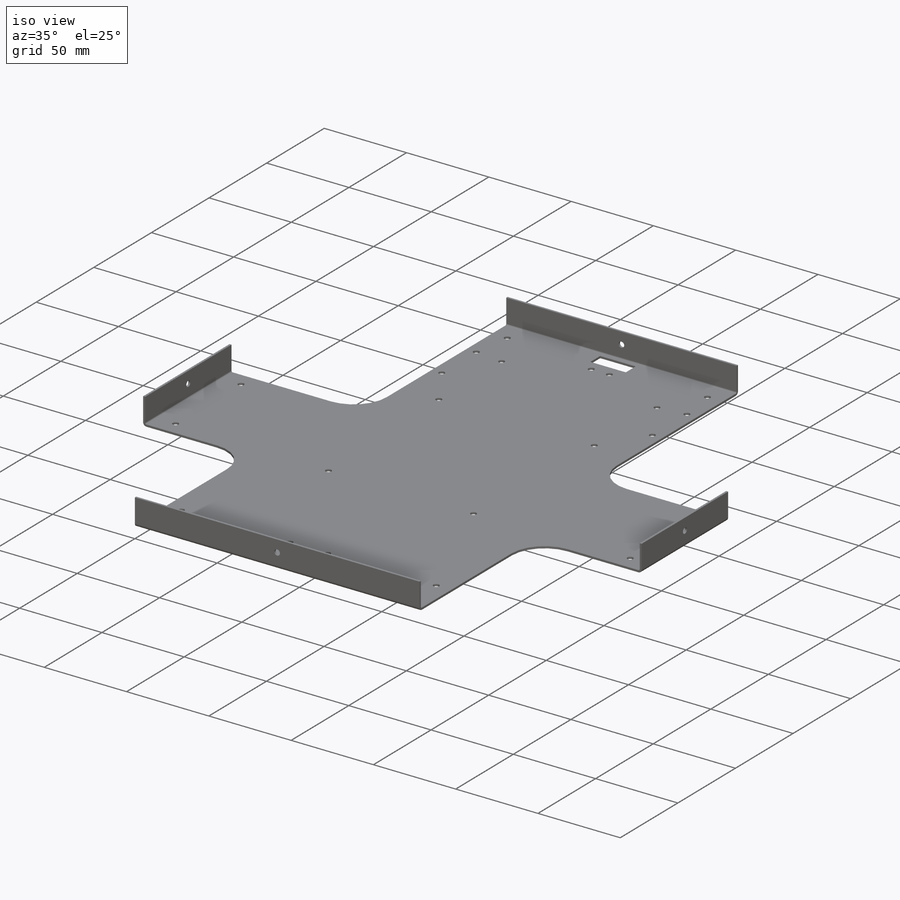
[diagram: iso view]
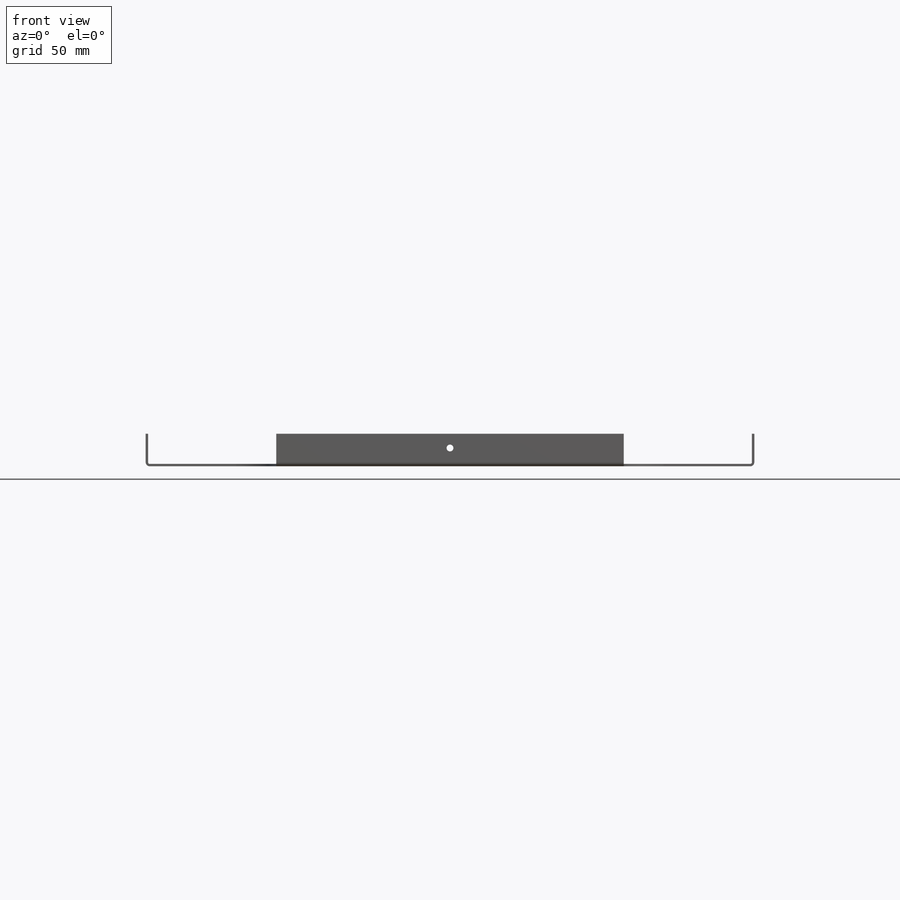
[diagram: front view]
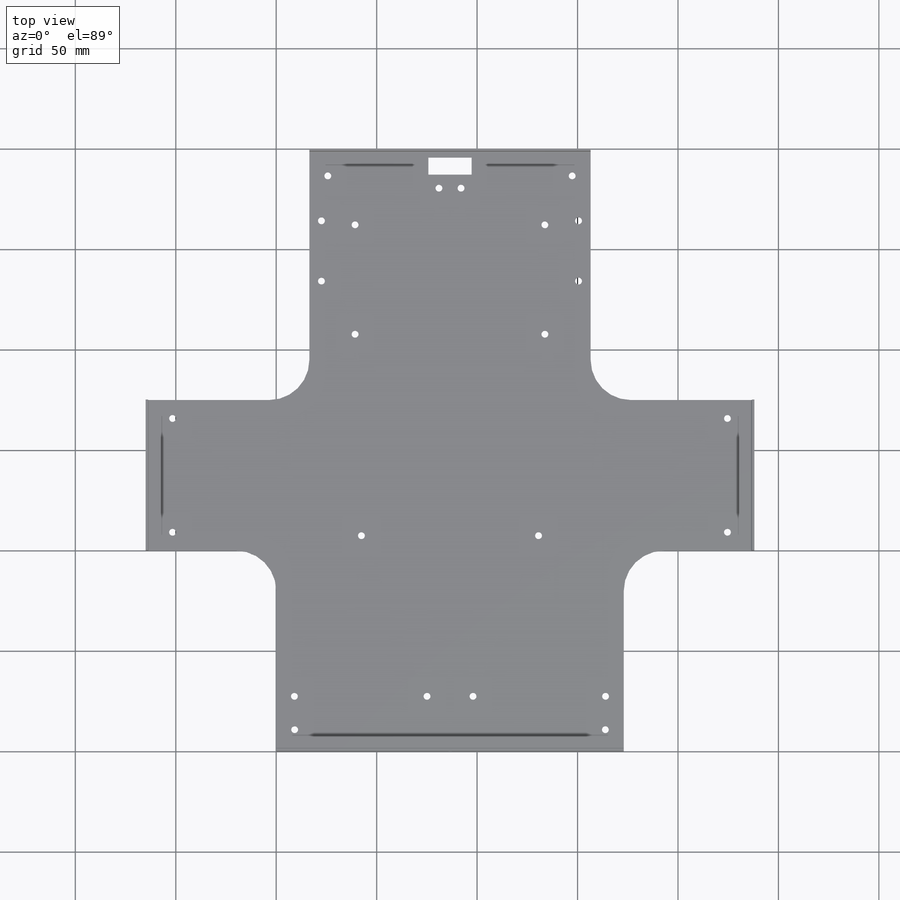
[diagram: top view]
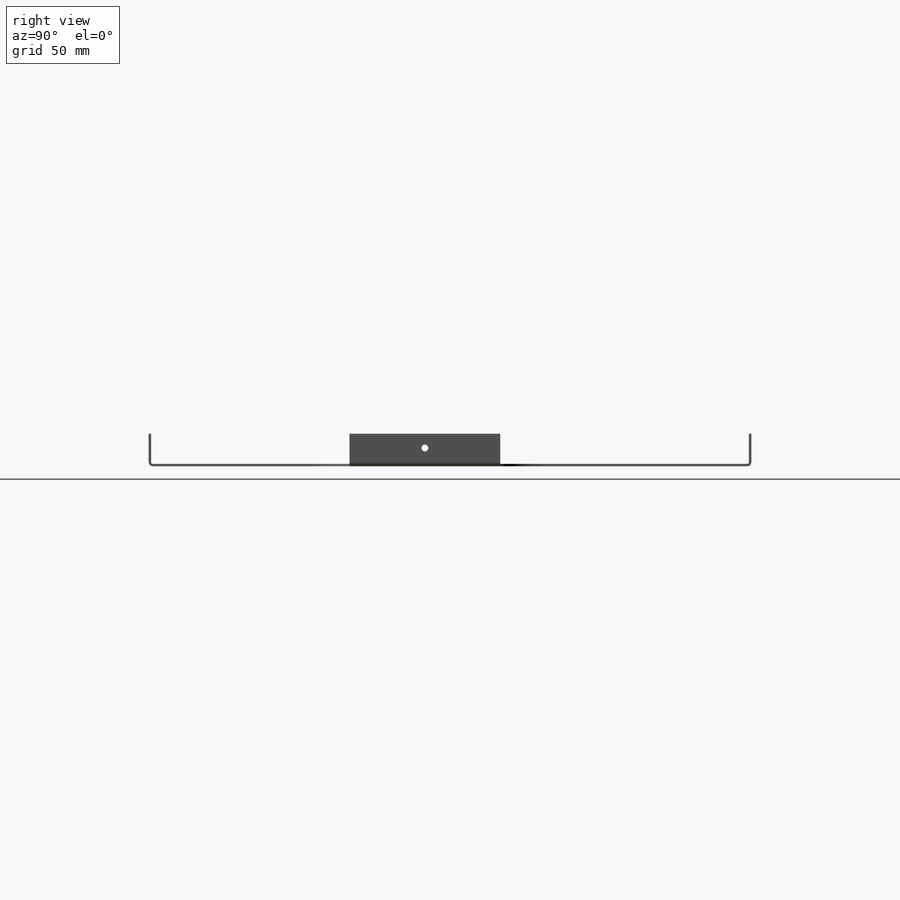
[diagram: right view]
SOLIDWORKS PART (.sldprt)
format: sldprt  version: not decoded by parser v0  size: 1,414,656 bytes
history: native  units: mm
features: sketch x73, sheet_metal_op x20, hole x12, cut_extrude x4, fillet x3, mirror x2, material x1, plane x1 + 64 further entries (+12 scaffold rows collapsed; 1 parser-record rows omitted)
feature tree (193):
  scaffold x12  (default folders/planes/origin — collapsed)
  material  "Plain Carbon Steel"
  sketch  "Sketch1"  dims[c1.D1=~84.130859mm c1.D2=~59.610307mm c2.D1=300.0mm c2.D2=173.0mm c2.D3=0.0mm c2.D4=65.0mm c2.D5=125.0mm c2.D6=0.0mm c2.D7=125.0mm c2.D8=65.0mm c2.D9=~114.531586mm c3.D3=100.0mm c3.D6=100.0mm c3.D9=140.0mm c3.D1=300.0mm c4.D1=0.762mm c4.D2=0.389 c4.D3=1.1938mm c4.D6=500.0mm]
  sheet_metal_op  "Base-Flange1"
  plane  "Mid Width Plane"
  hole  "M3 Clearance Hole2"  Diameter=3.4mm Depth=1.27mm
  sketch  "Sketch29"
  sketch  "Sketch28"  dims[hole-wizard template sketch: 47 standard entries collapsed; hole parameters kept: c15.Hole Depth=1.27mm c15.D3=~14.816244mm c15.Drill Angle=118.0deg]
  mirror  "Mirror3"
  fillet  "Fillet1"  Radius=20mm
  sketch  "Sketch34"  dims[c1.D1=95.0mm c1.D2=108.0mm c1.D3=52.5mm c1.D4=~138.542328mm c1.D5=~138.542328mm c2.D4=151.5mm]
  sketch  "Sketch35"  dims[c1.D1=122.0mm c1.D2=13.0mm c1.D3=0.0mm c1.D4=13.0mm c2.D4=~83.917663deg c3.D4=7.0mm]
  sketch  "Sketch62"  dims[D1=60.0mm D2=8.5mm D3=21.5mm D4=0.0mm D5=4.262mm]
  cut_extrude  "QRD Clearance"  Depth=10mm
  sketch  "Steering Box Allocation"  dims[c1.D1=150.0mm c1.D2=35.25mm c1.D3=70.0mm c1.D4=7.0mm c1.D5=39.75mm c2.D2=0.0mm]
  hole  "QRD Holes"  Diameter=3.4mm Depth=1.27mm
  sketch  "Sketch75"
  sketch  "Sketch74"  dims[hole-wizard template sketch: 47 standard entries collapsed; hole parameters kept: c15.Hole Depth=1.27mm c15.D3=~14.816244mm c15.Drill Angle=118.0deg]
  sketch  "Sketch73"  dims[D1=50.0mm]
  hole  "M3 (Steering Box)"  Diameter=3.4mm Depth=3mm
  sketch  "Sketch133"
  sketch  "Sketch132"  dims[hole-wizard template sketch: 47 standard entries collapsed; hole parameters kept: c15.Hole Depth=3.0mm c15.D3=~14.816244mm c15.Drill Angle=118.0deg]
  sketch  "Sketch136"  dims[c1.D1=0.762mm c1.D4=90.0deg c1.D5=1.0 c1.D8=0.605mm c1.D9=0.605mm c2.D1=0.762mm c2.D2=500.0mm c2.D3=0.0mm c2.D6=10.0mm c2.D7=15.0mm]
  fillet  "Edge-Flange2"  [1 undecoded]
  sketch  "Sketch139"
  cut_extrude  "EdgeBend2"  Depth=0.762mm
  fillet  "Edge-Flange3"  [1 undecoded]
  sketch  "Sketch142"
  cut_extrude  "EdgeBend3"  Depth=0.762mm
  mirror  "Mirror4"
  cut_extrude  "MirrorBend1"  Depth=0.762mm
  hole  "M3 Clearance Hole3"  Diameter=3.4mm Depth=1.21mm
  sketch  "Sketch143"
  sketch  "Sketch144"  dims[Thru Hole Dia.=3.4mm Thru Hole Depth=1.21mm]
  hole  "M3 Clearance Hole4"  Diameter=3.4mm Depth=1.21mm
  sketch  "Sketch145"
  sketch  "Sketch146"  dims[Thru Hole Dia.=3.4mm Thru Hole Depth=1.21mm]
  hole  "M3 Clearance Hole5"  Diameter=3.4mm Depth=1.21mm
  sketch  "Sketch148"  dims[D1=~21.355647mm]
  sketch  "Sketch147"  dims[hole-wizard template sketch: 60 standard entries collapsed; hole parameters kept: c18.Thru Hole Depth=1.21mm]
  hole  "M3 Clearance Hole6"  Diameter=3.4mm Depth=303mm
  sketch  "Sketch150"  dims[D1=~9.462682mm]
  sketch  "Sketch149"  dims[hole-wizard template sketch: 60 standard entries collapsed; hole parameters kept: c18.Thru Hole Depth=303.0mm]
  hole  "M3 Clearance Hole7"  Diameter=3.4mm Depth=1.21mm
  sketch  "Sketch154"  dims[D1=~8.879991mm]
  sketch  "Sketch153"  dims[hole-wizard template sketch: 47 standard entries collapsed; hole parameters kept: c15.Hole Depth=1.21mm c15.D3=~14.816244mm c15.Drill Angle=118.0deg]
  hole  "M3 Clearance Hole8"  Diameter=3.4mm Depth=1.21mm
  sketch  "Sketch155"
  sketch  "Sketch156"  dims[Thru Hole Dia.=3.4mm Thru Hole Depth=1.21mm]
  hole  "M3 Clearance Hole9"  Diameter=3.4mm Depth=1.21mm
  sketch  "Sketch157"
  sketch  "Sketch158"  dims[Thru Hole Dia.=3.4mm Thru Hole Depth=1.21mm]
  hole  "M3 Clearance Hole10"  Diameter=3.4mm Depth=1.21mm
  sketch  "Sketch159"
  sketch  "Sketch160"  dims[Thru Hole Dia.=3.4mm Thru Hole Depth=1.21mm]
  hole  "M3 Clearance Hole11"  Diameter=3.4mm Depth=1.21mm
  sketch  "Sketch161"
  sketch  "Sketch162"  dims[Thru Hole Dia.=3.4mm Thru Hole Depth=1.21mm]
  sketch  "Bend-Lines1"
  sketch  "Bounding-Box1"
  sheet_metal_op  "Sheet-Metal(1)"
  "Flat-Pattern(1)"
  sketch  "Bend-Lines2"
  sketch  "Bounding-Box2"
  parser-record x1  (decoder bookkeeping rows leaked as tree rows — omitted from the tree; the rows remain in map.json)
  sheet_metal_op  "Sheet-Metal(23)"
  "Flat-Pattern(1)"
  sketch  "Bend-Lines2"
  sketch  "Bounding-Box2"
  sheet_metal_op  "Sheet-Metal(24)"
  "Flat-Pattern(1)"
  sketch  "Bend-Lines2"
  sketch  "Bounding-Box2"
  sheet_metal_op  "Sheet-Metal(36)"
  "Flat-Pattern(1)"
  sketch  "Bend-Lines2"
  sketch  "Bounding-Box2"
  sheet_metal_op  "Sheet-Metal(39)"
  "Flat-Pattern(1)"
  sketch  "Bend-Lines2"
  sketch  "Bounding-Box2"
  sheet_metal_op  "Sheet-Metal(71)"
  "Flat-Pattern(1)"
  sketch  "Bend-Lines2"
  sketch  "Bounding-Box2"
  sheet_metal_op  "Sheet-Metal(103)"
  "Flat-Pattern(1)"
  sketch  "Bend-Lines2"
  sketch  "Bounding-Box2"
  sheet_metal_op  "Sheet-Metal(104)"
  "Flat-Pattern(1)"
  sketch  "Bend-Lines2"
  sketch  "Bounding-Box2"
  "Flatten-<EdgeBend1>1"
  "Flatten-<EdgeBend2>1"
  sheet_metal_op  "Sheet-Metal(105)"
  "Flat-Pattern(1)"
  sketch  "Bend-Lines2"
  sketch  "Bounding-Box2"
  "Flatten-<EdgeBend1>1"
  "Flatten-<EdgeBend3>1"
  "Flatten-<EdgeBend2>1"
  sheet_metal_op  "Sheet-Metal(106)"
  "Flat-Pattern(1)"
  sketch  "Bend-Lines2"
  sketch  "Bounding-Box2"
  "Flatten-<EdgeBend1>1"
  "Flatten-<EdgeBend3>1"
  "Flatten-<MirrorBend1>1"
  "Flatten-<EdgeBend2>1"
  sheet_metal_op  "Sheet-Metal(107)"
  "Flat-Pattern(1)"
  sketch  "Bend-Lines2"
  sketch  "Bounding-Box2"
  "Flatten-<EdgeBend1>1"
  "Flatten-<EdgeBend3>1"
  "Flatten-<MirrorBend1>1"
  "Flatten-<EdgeBend2>1"
  sheet_metal_op  "Sheet-Metal(108)"
  "Flat-Pattern(1)"
  sketch  "Bend-Lines2"
  sketch  "Bounding-Box2"
  "Flatten-<EdgeBend1>1"
  "Flatten-<EdgeBend3>1"
  "Flatten-<MirrorBend1>1"
  "Flatten-<EdgeBend2>1"
  sheet_metal_op  "Sheet-Metal(109)"
  "Flat-Pattern(1)"
  sketch  "Bend-Lines2"
  sketch  "Bounding-Box2"
  "Flatten-<EdgeBend1>1"
  "Flatten-<EdgeBend3>1"
  "Flatten-<MirrorBend1>1"
  "Flatten-<EdgeBend2>1"
  sheet_metal_op  "Sheet-Metal(110)"
  "Flat-Pattern(1)"
  sketch  "Bend-Lines2"
  sketch  "Bounding-Box2"
  "Flatten-<EdgeBend1>1"
  "Flatten-<EdgeBend3>1"
  "Flatten-<MirrorBend1>1"
  "Flatten-<EdgeBend2>1"
  sheet_metal_op  "Sheet-Metal(111)"
  "Flat-Pattern(1)"
  sketch  "Bend-Lines2"
  sketch  "Bounding-Box2"
  "Flatten-<EdgeBend1>1"
  "Flatten-<EdgeBend3>1"
  "Flatten-<MirrorBend1>1"
  "Flatten-<EdgeBend2>1"
  sheet_metal_op  "Sheet-Metal(112)"
  "Flat-Pattern(1)"
  sketch  "Bend-Lines2"
  sketch  "Bounding-Box2"
  "Flatten-<EdgeBend1>1"
  "Flatten-<EdgeBend3>1"
  "Flatten-<MirrorBend1>1"
  "Flatten-<EdgeBend2>1"
  sheet_metal_op  "Sheet-Metal(113)"
  "Flat-Pattern(1)"
  sketch  "Bend-Lines2"
  sketch  "Bounding-Box2"
  "Flatten-<EdgeBend1>1"
  "Flatten-<EdgeBend3>1"
  "Flatten-<MirrorBend1>1"
  "Flatten-<EdgeBend2>1"
  sheet_metal_op  "Sheet-Metal(114)"
  "Flat-Pattern(1)"
  sketch  "Bend-Lines2"
  sketch  "Bounding-Box2"
  "Flatten-<EdgeBend1>1"
  "Flatten-<EdgeBend3>1"
  "Flatten-<MirrorBend1>1"
  "Flatten-<EdgeBend2>1"
  sheet_metal_op  "Sheet-Metal(115)"
  "Flat-Pattern(1)"
  sketch  "Bend-Lines2"
  sketch  "Bounding-Box2"
  "Flatten-<EdgeBend1>1"
  "Flatten-<EdgeBend3>1"
  "Flatten-<MirrorBend1>1"
  "Flatten-<EdgeBend2>1"
decode coverage: 39 of 114 modeling features carry decoded parameters; 64 rows unclassified (native names shown)
note: ~ marks probable driven/reference dimensions
note: 2 parameter values undecoded
summary: Diameter pulled from absorbed wizard sketch
note: suppression state not decoded; provenance and decode notes live in map.json
